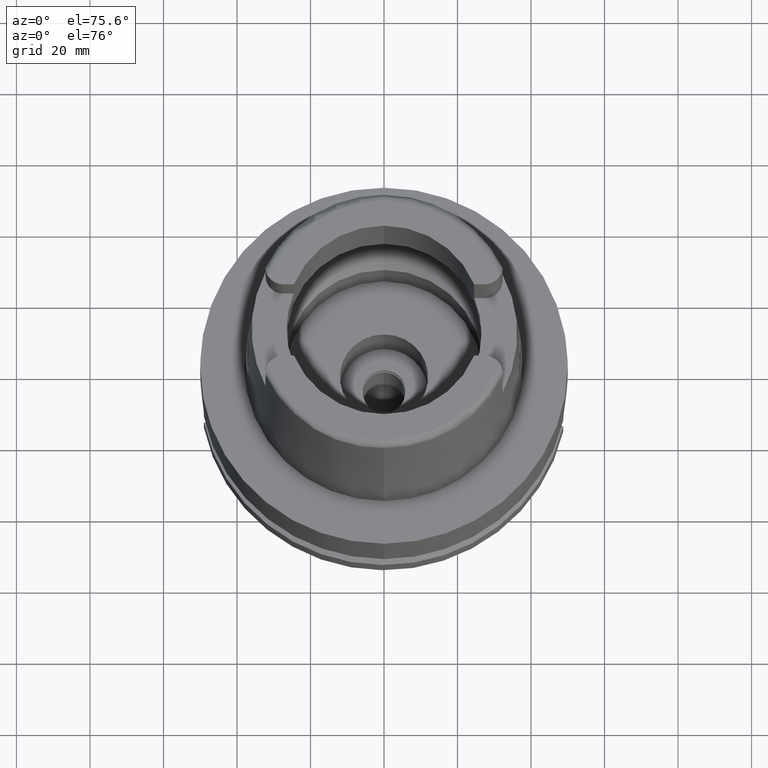
[diagram: clean part render]
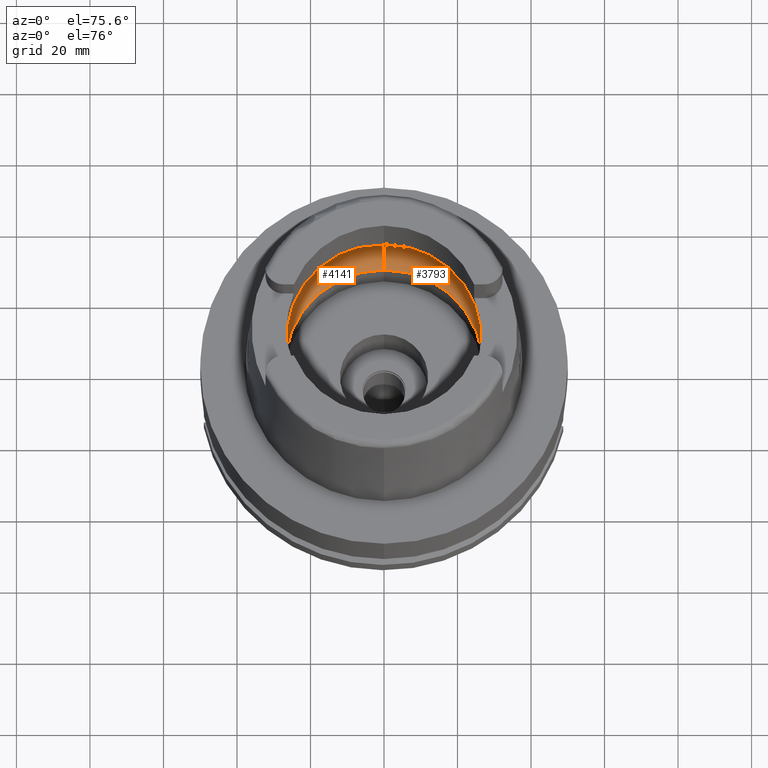
[diagram: same view with one multi-face feature highlighted, each face labeled with its STEP entity id]
A machine part, auxiliary view. The highlighted faces form ONE feature: a constant-radius fillet chain: 2 tangent blend faces with common blend radius 12 mm. The faces share edges in the B-rep.
Their STEP definitions:
[1] entity #3793 (Torus):
#26 = CIRCLE ( 'NONE', #5123, 11.99999999999999822 ) ;
#75 = DIRECTION ( 'NONE',  ( -1.000000000000000000, 0.0000000000000000000, 0.0000000000000000000 ) ) ;
#83 = CARTESIAN_POINT ( 'NONE',  ( 31.48971910754000447, 0.0000000000000000000, 9.000000000000000000 ) ) ;
#113 = B_SPLINE_CURVE_WITH_KNOTS ( 'NONE', 3,
 ( #2243, #5414, #3554, #83 ),
 .UNSPECIFIED., .F., .F.,
 ( 4, 4 ),
 ( 0.0000000000000000000, 1.000000000000000000 ),
 .UNSPECIFIED. ) ;
#118 = ORIENTED_EDGE ( 'NONE', *, *, #1836, .F. ) ;
#507 = CARTESIAN_POINT ( 'NONE',  ( 31.40918884336000616, -2.390158196043999705, 9.496624327025999790 ) ) ;
#592 = AXIS2_PLACEMENT_3D ( 'NONE', #1496, #4978, #1471 ) ;
#711 = TOROIDAL_SURFACE ( 'NONE', #2991, 19.50000000000000000, 12.00000000000000000 ) ;
#808 = CARTESIAN_POINT ( 'NONE',  ( 0.0000000000000000000, 0.0000000000000000000, 9.496624327025999790 ) ) ;
#950 = CARTESIAN_POINT ( 'NONE',  ( 31.46287568614665986, -1.684656699965325632, 9.190219625007294724 ) ) ;
#1015 = DIRECTION ( 'NONE',  ( 0.0000000000000000000, 0.0000000000000000000, 1.000000000000000000 ) ) ;
#1172 = ORIENTED_EDGE ( 'NONE', *, *, #1467, .F. ) ;
#1197 = CARTESIAN_POINT ( 'NONE',  ( 0.0000000000000000000, 19.50000000000000000, 9.496624327025999790 ) ) ;
#1277 = VERTEX_POINT ( 'NONE', #3515 ) ;
#1281 = EDGE_CURVE ( 'NONE', #1517, #3643, #26, .T. ) ;
#1467 = EDGE_CURVE ( 'NONE', #1517, #1531, #3040, .T. ) ;
#1471 = DIRECTION ( 'NONE',  ( 0.0000000000000000000, -1.000000000000000000, 0.0000000000000000000 ) ) ;
#1496 = CARTESIAN_POINT ( 'NONE',  ( 0.0000000000000000000, 0.0000000000000000000, 0.04993178413040000319 ) ) ;
#1517 = VERTEX_POINT ( 'NONE', #4945 ) ;
#1531 = VERTEX_POINT ( 'NONE', #2849 ) ;
#1687 = EDGE_CURVE ( 'NONE', #4360, #1277, #5048, .T. ) ;
#1808 = CARTESIAN_POINT ( 'NONE',  ( 0.0000000000000000000, 0.0000000000000000000, 9.496624327025999790 ) ) ;
#1836 = EDGE_CURVE ( 'NONE', #1277, #2303, #113, .T. ) ;
#1916 = CARTESIAN_POINT ( 'NONE',  ( 0.0000000000000000000, -31.50000000000000000, 9.496624327025999790 ) ) ;
#2047 = CIRCLE ( 'NONE', #2591, 11.99999999999999822 ) ;
#2128 = ORIENTED_EDGE ( 'NONE', *, *, #5008, .F. ) ;
#2243 = CARTESIAN_POINT ( 'NONE',  ( 31.40918884336000616, 2.390158196043999705, 9.496624327025999790 ) ) ;
#2303 = VERTEX_POINT ( 'NONE', #5636 ) ;
#2527 = ORIENTED_EDGE ( 'NONE', *, *, #4376, .F. ) ;
#2591 = AXIS2_PLACEMENT_3D ( 'NONE', #1197, #4305, #5555 ) ;
#2741 = DIRECTION ( 'NONE',  ( 0.0000000000000000000, 1.000000000000000000, 0.0000000000000000000 ) ) ;
#2801 = AXIS2_PLACEMENT_3D ( 'NONE', #1808, #3968, #5369 ) ;
#2849 = CARTESIAN_POINT ( 'NONE',  ( 0.0000000000000000000, 26.89999999999999858, 0.04993178413040000319 ) ) ;
#2991 = AXIS2_PLACEMENT_3D ( 'NONE', #4921, #1015, #2741 ) ;
#3040 = CIRCLE ( 'NONE', #592, 26.89999999999999858 ) ;
#3113 = CARTESIAN_POINT ( 'NONE',  ( 31.48971910754000447, 0.0000000000000000000, 9.000000000000000000 ) ) ;
#3357 = DIRECTION ( 'NONE',  ( 0.0000000000000000000, 0.0000000000000000000, -1.000000000000000000 ) ) ;
#3489 = AXIS2_PLACEMENT_3D ( 'NONE', #808, #3357, #3959 ) ;
#3515 = CARTESIAN_POINT ( 'NONE',  ( 31.40918884336000616, 2.390158196043999705, 9.496624327025999790 ) ) ;
#3554 = CARTESIAN_POINT ( 'NONE',  ( 31.48971910753999026, 0.8697454017787721314, 9.000000000000001776 ) ) ;
#3623 = CIRCLE ( 'NONE', #2801, 31.49999999999998934 ) ;
#3643 = VERTEX_POINT ( 'NONE', #1916 ) ;
#3793 = ADVANCED_FACE ( 'NONE', ( #4460 ), #711, .F. ) ;
#3839 = B_SPLINE_CURVE_WITH_KNOTS ( 'NONE', 3,
 ( #3113, #4858, #950, #4429 ),
 .UNSPECIFIED., .F., .F.,
 ( 4, 4 ),
 ( 0.0000000000000000000, 1.000000000000000000 ),
 .UNSPECIFIED. ) ;
#3959 = DIRECTION ( 'NONE',  ( 0.0000000000000000000, 1.000000000000000000, 0.0000000000000000000 ) ) ;
#3968 = DIRECTION ( 'NONE',  ( 0.0000000000000000000, 0.0000000000000000000, -1.000000000000000000 ) ) ;
#4305 = DIRECTION ( 'NONE',  ( 1.000000000000000000, 0.0000000000000000000, 0.0000000000000000000 ) ) ;
#4360 = VERTEX_POINT ( 'NONE', #4482 ) ;
#4376 = EDGE_CURVE ( 'NONE', #4889, #3643, #3623, .T. ) ;
#4387 = EDGE_CURVE ( 'NONE', #2303, #4889, #3839, .T. ) ;
#4411 = DIRECTION ( 'NONE',  ( 0.0000000000000000000, -0.6166666666667049990, -0.7872243785746061429 ) ) ;
#4429 = CARTESIAN_POINT ( 'NONE',  ( 31.40918884336000616, -2.390158196043999705, 9.496624327025999790 ) ) ;
#4460 = FACE_OUTER_BOUND ( 'NONE', #5547, .T. ) ;
#4482 = CARTESIAN_POINT ( 'NONE',  ( 0.0000000000000000000, 31.50000000000000000, 9.496624327025999790 ) ) ;
#4730 = ORIENTED_EDGE ( 'NONE', *, *, #4387, .F. ) ;
#4858 = CARTESIAN_POINT ( 'NONE',  ( 31.48971910753999026, -0.8697454017312684638, 8.999999999999998224 ) ) ;
#4889 = VERTEX_POINT ( 'NONE', #507 ) ;
#4916 = ORIENTED_EDGE ( 'NONE', *, *, #1687, .F. ) ;
#4921 = CARTESIAN_POINT ( 'NONE',  ( 0.0000000000000000000, 0.0000000000000000000, 9.496624327025999790 ) ) ;
#4945 = CARTESIAN_POINT ( 'NONE',  ( 0.0000000000000000000, -26.89999999999999858, 0.04993178413041000213 ) ) ;
#4978 = DIRECTION ( 'NONE',  ( 0.0000000000000000000, 0.0000000000000000000, 1.000000000000000000 ) ) ;
#5008 = EDGE_CURVE ( 'NONE', #1531, #4360, #2047, .T. ) ;
#5015 = ORIENTED_EDGE ( 'NONE', *, *, #1281, .T. ) ;
#5048 = CIRCLE ( 'NONE', #3489, 31.50000000000000000 ) ;
#5123 = AXIS2_PLACEMENT_3D ( 'NONE', #5264, #75, #4411 ) ;
#5264 = CARTESIAN_POINT ( 'NONE',  ( 0.0000000000000000000, -19.50000000000000000, 9.496624327025999790 ) ) ;
#5369 = DIRECTION ( 'NONE',  ( 0.9971171061384295209, -0.07587803796965221503, 0.0000000000000000000 ) ) ;
#5414 = CARTESIAN_POINT ( 'NONE',  ( 31.46287568614665986, 1.684656700008886121, 9.190219625026216477 ) ) ;
#5547 = EDGE_LOOP ( 'NONE', ( #118, #4916, #2128, #1172, #5015, #2527, #4730 ) ) ;
#5555 = DIRECTION ( 'NONE',  ( 0.0000000000000000000, 0.6166666666667049990, -0.7872243785746061429 ) ) ;
#5636 = CARTESIAN_POINT ( 'NONE',  ( 31.48971910754000447, 0.0000000000000000000, 9.000000000000000000 ) ) ;
[2] entity #4141 (Torus):
#6 = DIRECTION ( 'NONE',  ( 0.0000000000000000000, 1.000000000000000000, 0.0000000000000000000 ) ) ;
#26 = CIRCLE ( 'NONE', #5123, 11.99999999999999822 ) ;
#75 = DIRECTION ( 'NONE',  ( -1.000000000000000000, 0.0000000000000000000, 0.0000000000000000000 ) ) ;
#89 = CARTESIAN_POINT ( 'NONE',  ( -31.40918884336000616, -2.390158196043999705, 9.496624327025999790 ) ) ;
#217 = CARTESIAN_POINT ( 'NONE',  ( 0.0000000000000000000, 0.0000000000000000000, 0.04993178413041000213 ) ) ;
#226 = CIRCLE ( 'NONE', #1766, 26.89999999999999858 ) ;
#492 = AXIS2_PLACEMENT_3D ( 'NONE', #1818, #2690, #4926 ) ;
#600 = ORIENTED_EDGE ( 'NONE', *, *, #941, .F. ) ;
#621 = AXIS2_PLACEMENT_3D ( 'NONE', #3909, #1659, #3028 ) ;
#669 = DIRECTION ( 'NONE',  ( 0.0000000000000000000, 0.0000000000000000000, 1.000000000000000000 ) ) ;
#790 = CARTESIAN_POINT ( 'NONE',  ( -31.48971910754000447, 0.8697454016785111097, 9.000000000000001776 ) ) ;
#807 = CARTESIAN_POINT ( 'NONE',  ( 0.0000000000000000000, 0.0000000000000000000, 9.496624327025999790 ) ) ;
#941 = EDGE_CURVE ( 'NONE', #4209, #4381, #1879, .T. ) ;
#974 = B_SPLINE_CURVE_WITH_KNOTS ( 'NONE', 3,
 ( #89, #1010, #4054, #3144 ),
 .UNSPECIFIED., .F., .F.,
 ( 4, 4 ),
 ( 0.0000000000000000000, 1.000000000000000000 ),
 .UNSPECIFIED. ) ;
#1010 = CARTESIAN_POINT ( 'NONE',  ( -31.46287568614665986, -1.684656700028137832, 9.190219625034576012 ) ) ;
#1037 = CARTESIAN_POINT ( 'NONE',  ( -31.40918884336000616, 2.390158196043999705, 9.496624327025999790 ) ) ;
#1197 = CARTESIAN_POINT ( 'NONE',  ( 0.0000000000000000000, 19.50000000000000000, 9.496624327025999790 ) ) ;
#1281 = EDGE_CURVE ( 'NONE', #1517, #3643, #26, .T. ) ;
#1330 = CARTESIAN_POINT ( 'NONE',  ( -31.40918884336000616, 2.390158196043999705, 9.496624327025999790 ) ) ;
#1339 = EDGE_CURVE ( 'NONE', #3643, #3156, #2209, .T. ) ;
#1517 = VERTEX_POINT ( 'NONE', #4945 ) ;
#1531 = VERTEX_POINT ( 'NONE', #2849 ) ;
#1584 = EDGE_CURVE ( 'NONE', #1531, #1517, #226, .T. ) ;
#1645 = CARTESIAN_POINT ( 'NONE',  ( -31.46287568614665986, 1.684656699916923683, 9.190219624986275093 ) ) ;
#1659 = DIRECTION ( 'NONE',  ( 0.0000000000000000000, 0.0000000000000000000, -1.000000000000000000 ) ) ;
#1661 = DIRECTION ( 'NONE',  ( 0.0000000000000000000, 0.0000000000000000000, 1.000000000000000000 ) ) ;
#1681 = ORIENTED_EDGE ( 'NONE', *, *, #1584, .F. ) ;
#1766 = AXIS2_PLACEMENT_3D ( 'NONE', #217, #669, #2399 ) ;
#1818 = CARTESIAN_POINT ( 'NONE',  ( 0.0000000000000000000, 0.0000000000000000000, 9.496624327025999790 ) ) ;
#1879 = B_SPLINE_CURVE_WITH_KNOTS ( 'NONE', 3,
 ( #5181, #790, #1645, #1330 ),
 .UNSPECIFIED., .F., .F.,
 ( 4, 4 ),
 ( 0.0000000000000000000, 1.000000000000000000 ),
 .UNSPECIFIED. ) ;
#1916 = CARTESIAN_POINT ( 'NONE',  ( 0.0000000000000000000, -31.50000000000000000, 9.496624327025999790 ) ) ;
#2047 = CIRCLE ( 'NONE', #2591, 11.99999999999999822 ) ;
#2149 = CARTESIAN_POINT ( 'NONE',  ( -31.48971910754000447, 0.0000000000000000000, 9.000000000000000000 ) ) ;
#2209 = CIRCLE ( 'NONE', #492, 31.50000000000000000 ) ;
#2250 = ORIENTED_EDGE ( 'NONE', *, *, #3010, .F. ) ;
#2399 = DIRECTION ( 'NONE',  ( 0.0000000000000000000, 1.000000000000000000, 0.0000000000000000000 ) ) ;
#2591 = AXIS2_PLACEMENT_3D ( 'NONE', #1197, #4305, #5555 ) ;
#2690 = DIRECTION ( 'NONE',  ( 0.0000000000000000000, 0.0000000000000000000, -1.000000000000000000 ) ) ;
#2818 = EDGE_CURVE ( 'NONE', #4381, #4360, #4710, .T. ) ;
#2849 = CARTESIAN_POINT ( 'NONE',  ( 0.0000000000000000000, 26.89999999999999858, 0.04993178413040000319 ) ) ;
#3010 = EDGE_CURVE ( 'NONE', #3156, #4209, #974, .T. ) ;
#3028 = DIRECTION ( 'NONE',  ( -0.9971171061384295209, 0.07587803796965221503, 0.0000000000000000000 ) ) ;
#3144 = CARTESIAN_POINT ( 'NONE',  ( -31.48971910754000447, 0.0000000000000000000, 9.000000000000000000 ) ) ;
#3156 = VERTEX_POINT ( 'NONE', #5128 ) ;
#3364 = ORIENTED_EDGE ( 'NONE', *, *, #1339, .F. ) ;
#3643 = VERTEX_POINT ( 'NONE', #1916 ) ;
#3684 = ORIENTED_EDGE ( 'NONE', *, *, #2818, .F. ) ;
#3909 = CARTESIAN_POINT ( 'NONE',  ( 0.0000000000000000000, 0.0000000000000000000, 9.496624327025999790 ) ) ;
#4054 = CARTESIAN_POINT ( 'NONE',  ( -31.48971910754000447, -0.8697454017997489073, 8.999999999999998224 ) ) ;
#4084 = AXIS2_PLACEMENT_3D ( 'NONE', #807, #1661, #6 ) ;
#4141 = ADVANCED_FACE ( 'NONE', ( #4342 ), #5001, .F. ) ;
#4209 = VERTEX_POINT ( 'NONE', #2149 ) ;
#4305 = DIRECTION ( 'NONE',  ( 1.000000000000000000, 0.0000000000000000000, 0.0000000000000000000 ) ) ;
#4342 = FACE_OUTER_BOUND ( 'NONE', #4856, .T. ) ;
#4360 = VERTEX_POINT ( 'NONE', #4482 ) ;
#4381 = VERTEX_POINT ( 'NONE', #1037 ) ;
#4411 = DIRECTION ( 'NONE',  ( 0.0000000000000000000, -0.6166666666667049990, -0.7872243785746061429 ) ) ;
#4445 = ORIENTED_EDGE ( 'NONE', *, *, #5008, .T. ) ;
#4482 = CARTESIAN_POINT ( 'NONE',  ( 0.0000000000000000000, 31.50000000000000000, 9.496624327025999790 ) ) ;
#4710 = CIRCLE ( 'NONE', #621, 31.49999999999998934 ) ;
#4856 = EDGE_LOOP ( 'NONE', ( #3364, #5065, #1681, #4445, #3684, #600, #2250 ) ) ;
#4926 = DIRECTION ( 'NONE',  ( 0.0000000000000000000, -1.000000000000000000, 0.0000000000000000000 ) ) ;
#4945 = CARTESIAN_POINT ( 'NONE',  ( 0.0000000000000000000, -26.89999999999999858, 0.04993178413041000213 ) ) ;
#5001 = TOROIDAL_SURFACE ( 'NONE', #4084, 19.50000000000000000, 12.00000000000000000 ) ;
#5008 = EDGE_CURVE ( 'NONE', #1531, #4360, #2047, .T. ) ;
#5065 = ORIENTED_EDGE ( 'NONE', *, *, #1281, .F. ) ;
#5123 = AXIS2_PLACEMENT_3D ( 'NONE', #5264, #75, #4411 ) ;
#5128 = CARTESIAN_POINT ( 'NONE',  ( -31.40918884336000616, -2.390158196043999705, 9.496624327025999790 ) ) ;
#5181 = CARTESIAN_POINT ( 'NONE',  ( -31.48971910754000447, 0.0000000000000000000, 9.000000000000000000 ) ) ;
#5264 = CARTESIAN_POINT ( 'NONE',  ( 0.0000000000000000000, -19.50000000000000000, 9.496624327025999790 ) ) ;
#5555 = DIRECTION ( 'NONE',  ( 0.0000000000000000000, 0.6166666666667049990, -0.7872243785746061429 ) ) ;